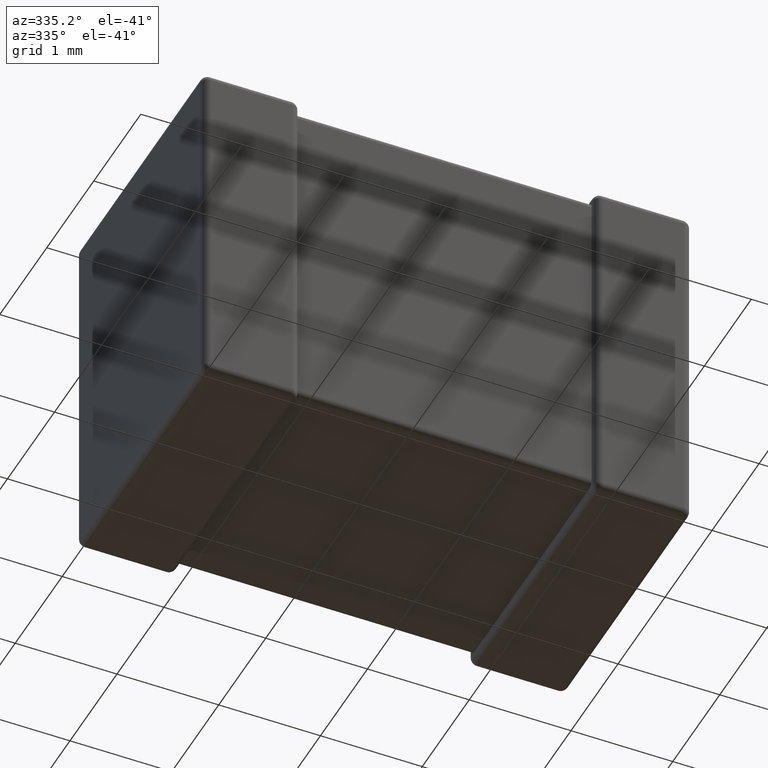
[diagram: clean part render]
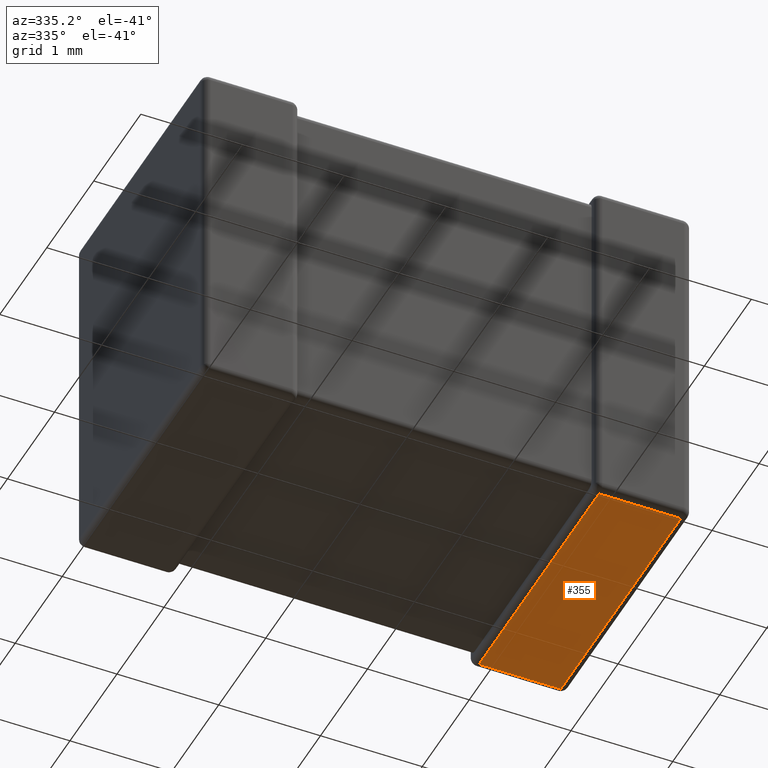
[diagram: same view with one face highlighted and labeled with its STEP entity id]
A machine part, auxiliary view. The second image highlights one B-rep face of the part: STEP entity #355.
In plain terms, the highlighted planar face has unit normal (0, 0, 1).
Its self-contained STEP definition (entity closure, byte-faithful):
#131 = LINE ( 'NONE', #827, #2963 ) ;
#163 = DIRECTION ( 'NONE',  ( -0.000000000000000000, -1.000000000000000000, 0.000000000000000000 ) ) ;
#251 = ORIENTED_EDGE ( 'NONE', *, *, #779, .T. ) ;
#355 = ADVANCED_FACE ( 'NONE', ( #4446 ), #2562, .F. ) ;
#532 = VECTOR ( 'NONE', #3426, 1000.000000000000000 ) ;
#779 = EDGE_CURVE ( 'NONE', #2009, #1563, #3334, .T. ) ;
#827 = CARTESIAN_POINT ( 'NONE',  ( 3.922799999999999621, 0.000000000000000000, -3.500000000000000000 ) ) ;
#1135 = DIRECTION ( 'NONE',  ( 1.000000000000000000, 0.000000000000000000, -0.000000000000000000 ) ) ;
#1175 = CARTESIAN_POINT ( 'NONE',  ( 4.727199999999999847, 0.000000000000000000, -3.500000000000000000 ) ) ;
#1279 = VERTEX_POINT ( 'NONE', #2591 ) ;
#1526 = ORIENTED_EDGE ( 'NONE', *, *, #2798, .T. ) ;
#1538 = EDGE_CURVE ( 'NONE', #1563, #1279, #3160, .T. ) ;
#1563 = VERTEX_POINT ( 'NONE', #3487 ) ;
#1952 = AXIS2_PLACEMENT_3D ( 'NONE', #2278, #3624, #1135 ) ;
#2009 = VERTEX_POINT ( 'NONE', #3498 ) ;
#2278 = CARTESIAN_POINT ( 'NONE',  ( 4.799999999999999822, 0.000000000000000000, -3.500000000000000000 ) ) ;
#2480 = VERTEX_POINT ( 'NONE', #4676 ) ;
#2509 = DIRECTION ( 'NONE',  ( -1.000000000000000000, -0.000000000000000000, 0.000000000000000000 ) ) ;
#2562 = PLANE ( 'NONE',  #1952 ) ;
#2591 = CARTESIAN_POINT ( 'NONE',  ( 3.922799999999999621, 0.07280000000000000360, -3.500000000000000000 ) ) ;
#2642 = LINE ( 'NONE', #3748, #532 ) ;
#2653 = EDGE_LOOP ( 'NONE', ( #3962, #3873, #1526, #251 ) ) ;
#2712 = EDGE_CURVE ( 'NONE', #1279, #2480, #131, .T. ) ;
#2798 = EDGE_CURVE ( 'NONE', #2480, #2009, #2642, .T. ) ;
#2963 = VECTOR ( 'NONE', #4053, 1000.000000000000000 ) ;
#3160 = LINE ( 'NONE', #4271, #3833 ) ;
#3334 = LINE ( 'NONE', #1175, #4648 ) ;
#3426 = DIRECTION ( 'NONE',  ( 1.000000000000000000, -0.000000000000000000, -0.000000000000000000 ) ) ;
#3487 = CARTESIAN_POINT ( 'NONE',  ( 4.727199999999999847, 0.07280000000000000360, -3.500000000000000000 ) ) ;
#3498 = CARTESIAN_POINT ( 'NONE',  ( 4.727199999999999847, 2.627200000000000202, -3.500000000000000000 ) ) ;
#3624 = DIRECTION ( 'NONE',  ( 0.000000000000000000, 0.000000000000000000, 1.000000000000000000 ) ) ;
#3748 = CARTESIAN_POINT ( 'NONE',  ( 4.799999999999999822, 2.627200000000000202, -3.500000000000000000 ) ) ;
#3833 = VECTOR ( 'NONE', #2509, 1000.000000000000000 ) ;
#3873 = ORIENTED_EDGE ( 'NONE', *, *, #2712, .T. ) ;
#3962 = ORIENTED_EDGE ( 'NONE', *, *, #1538, .T. ) ;
#4053 = DIRECTION ( 'NONE',  ( 0.000000000000000000, 1.000000000000000000, 0.000000000000000000 ) ) ;
#4271 = CARTESIAN_POINT ( 'NONE',  ( 4.799999999999999822, 0.07280000000000000360, -3.500000000000000000 ) ) ;
#4446 = FACE_OUTER_BOUND ( 'NONE', #2653, .T. ) ;
#4648 = VECTOR ( 'NONE', #163, 1000.000000000000000 ) ;
#4676 = CARTESIAN_POINT ( 'NONE',  ( 3.922799999999999621, 2.627200000000000202, -3.500000000000000000 ) ) ;